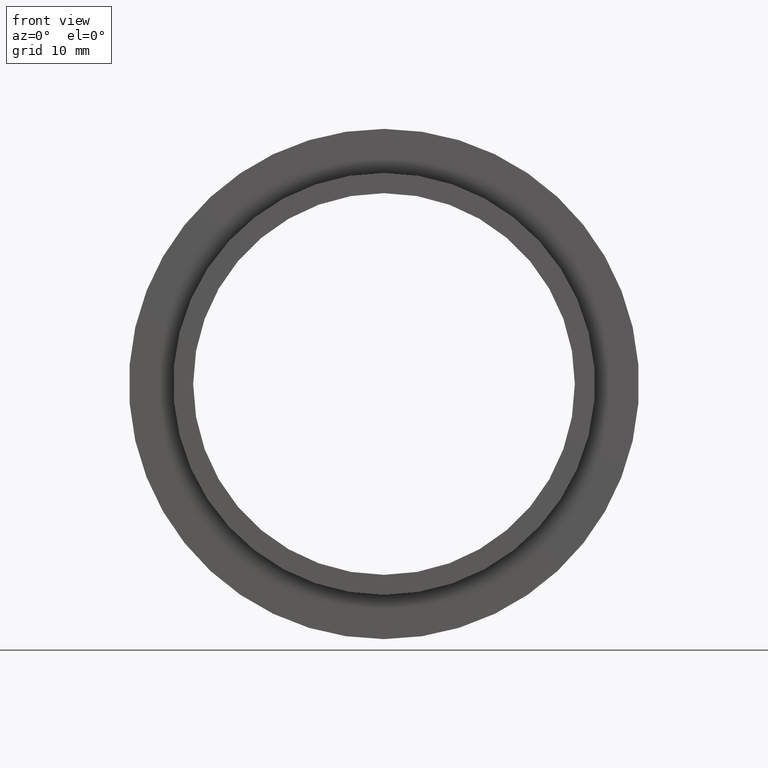
[diagram: clean part render]
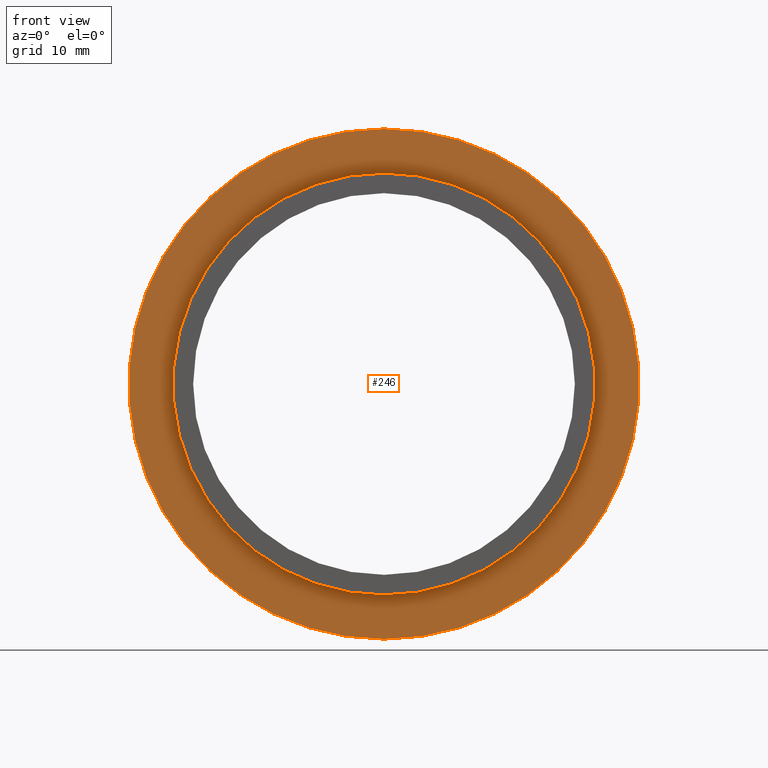
[diagram: same view with one face highlighted and labeled with its STEP entity id]
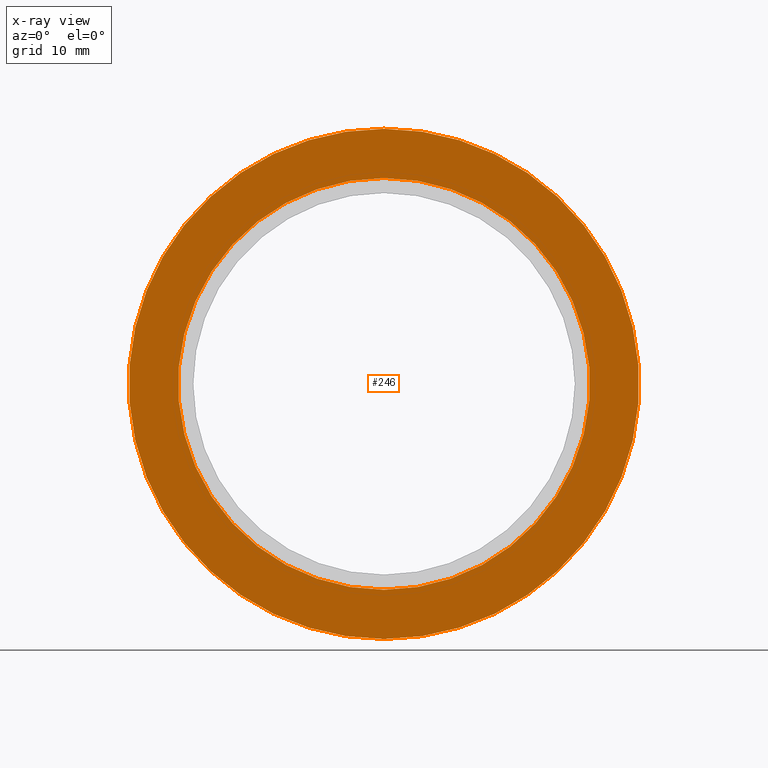
[diagram: x-ray of the same camera — body ghosted, the highlighted face saturated]
A machine part, front view. The second image highlights one B-rep face of the part: STEP entity #246.
The next image is the same camera in x-ray: the body ghosted, the highlighted face saturated — about 0% of this face is hidden behind the body in this view.
In plain terms, the highlighted planar face has unit normal (0, -1, -0).
Its self-contained STEP definition (entity closure, byte-faithful):
#11 = CIRCLE ( 'NONE', #564, 20.50000000000000000 ) ;
#21 = EDGE_CURVE ( 'NONE', #445, #163, #298, .T. ) ;
#25 = DIRECTION ( 'NONE',  ( -0.0000000000000000000, -1.000000000000000000, -0.0000000000000000000 ) ) ;
#30 = AXIS2_PLACEMENT_3D ( 'NONE', #586, #474, #330 ) ;
#54 = PLANE ( 'NONE',  #674 ) ;
#63 = VERTEX_POINT ( 'NONE', #149 ) ;
#67 = DIRECTION ( 'NONE',  ( 0.0000000000000000000, 0.0000000000000000000, -1.000000000000000000 ) ) ;
#106 = ORIENTED_EDGE ( 'NONE', *, *, #530, .T. ) ;
#111 = CARTESIAN_POINT ( 'NONE',  ( 0.0000000000000000000, 3.500000000000000000, 0.0000000000000000000 ) ) ;
#119 = DIRECTION ( 'NONE',  ( -0.0000000000000000000, -1.000000000000000000, -0.0000000000000000000 ) ) ;
#128 = DIRECTION ( 'NONE',  ( 0.0000000000000000000, 0.0000000000000000000, -1.000000000000000000 ) ) ;
#137 = FACE_BOUND ( 'NONE', #181, .T. ) ;
#149 = CARTESIAN_POINT ( 'NONE',  ( 2.510525938252074500E-015, 3.500000000000000000, 20.50000000000000000 ) ) ;
#158 = DIRECTION ( 'NONE',  ( -0.0000000000000000000, -1.000000000000000000, -0.0000000000000000000 ) ) ;
#163 = VERTEX_POINT ( 'NONE', #435 ) ;
#168 = AXIS2_PLACEMENT_3D ( 'NONE', #335, #158, #553 ) ;
#181 = EDGE_LOOP ( 'NONE', ( #447, #675 ) ) ;
#240 = EDGE_LOOP ( 'NONE', ( #561, #106 ) ) ;
#246 = ADVANCED_FACE ( 'NONE', ( #322, #137 ), #54, .T. ) ;
#257 = VERTEX_POINT ( 'NONE', #609 ) ;
#291 = CIRCLE ( 'NONE', #168, 20.50000000000000000 ) ;
#298 = CIRCLE ( 'NONE', #30, 25.39999999999999900 ) ;
#322 = FACE_OUTER_BOUND ( 'NONE', #240, .T. ) ;
#330 = DIRECTION ( 'NONE',  ( 0.0000000000000000000, 0.0000000000000000000, -1.000000000000000000 ) ) ;
#333 = EDGE_CURVE ( 'NONE', #63, #257, #291, .T. ) ;
#335 = CARTESIAN_POINT ( 'NONE',  ( 0.0000000000000000000, 3.500000000000000000, 0.0000000000000000000 ) ) ;
#391 = DIRECTION ( 'NONE',  ( 0.0000000000000000000, 0.0000000000000000000, -1.000000000000000000 ) ) ;
#409 = CARTESIAN_POINT ( 'NONE',  ( 0.0000000000000000000, 3.500000000000000000, 0.0000000000000000000 ) ) ;
#410 = CIRCLE ( 'NONE', #519, 25.39999999999999900 ) ;
#435 = CARTESIAN_POINT ( 'NONE',  ( 3.110602869834276900E-015, 3.500000000000000000, 25.39999999999999900 ) ) ;
#445 = VERTEX_POINT ( 'NONE', #680 ) ;
#447 = ORIENTED_EDGE ( 'NONE', *, *, #614, .F. ) ;
#474 = DIRECTION ( 'NONE',  ( -0.0000000000000000000, -1.000000000000000000, -0.0000000000000000000 ) ) ;
#519 = AXIS2_PLACEMENT_3D ( 'NONE', #111, #25, #128 ) ;
#530 = EDGE_CURVE ( 'NONE', #163, #445, #410, .T. ) ;
#553 = DIRECTION ( 'NONE',  ( 0.0000000000000000000, 0.0000000000000000000, -1.000000000000000000 ) ) ;
#561 = ORIENTED_EDGE ( 'NONE', *, *, #21, .T. ) ;
#564 = AXIS2_PLACEMENT_3D ( 'NONE', #409, #119, #67 ) ;
#586 = CARTESIAN_POINT ( 'NONE',  ( 0.0000000000000000000, 3.500000000000000000, 0.0000000000000000000 ) ) ;
#609 = CARTESIAN_POINT ( 'NONE',  ( 0.0000000000000000000, 3.500000000000000000, -20.50000000000000000 ) ) ;
#614 = EDGE_CURVE ( 'NONE', #257, #63, #11, .T. ) ;
#623 = CARTESIAN_POINT ( 'NONE',  ( 20.50000000000000000, 3.500000000000000000, 0.0000000000000000000 ) ) ;
#674 = AXIS2_PLACEMENT_3D ( 'NONE', #623, #723, #391 ) ;
#675 = ORIENTED_EDGE ( 'NONE', *, *, #333, .F. ) ;
#680 = CARTESIAN_POINT ( 'NONE',  ( 0.0000000000000000000, 3.500000000000000000, -25.39999999999999900 ) ) ;
#723 = DIRECTION ( 'NONE',  ( 0.0000000000000000000, -1.000000000000000000, -0.0000000000000000000 ) ) ;